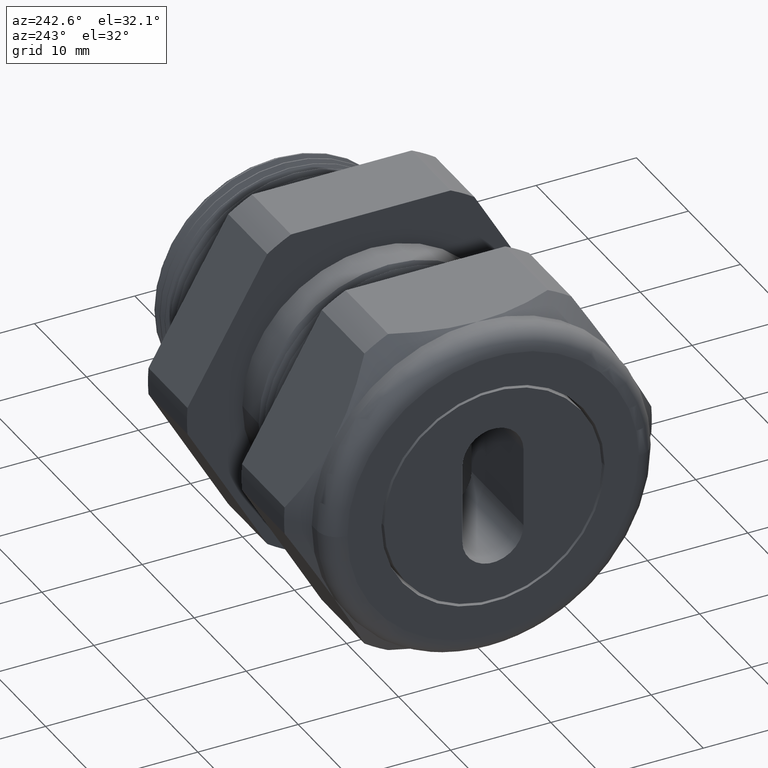
[diagram: clean part render]
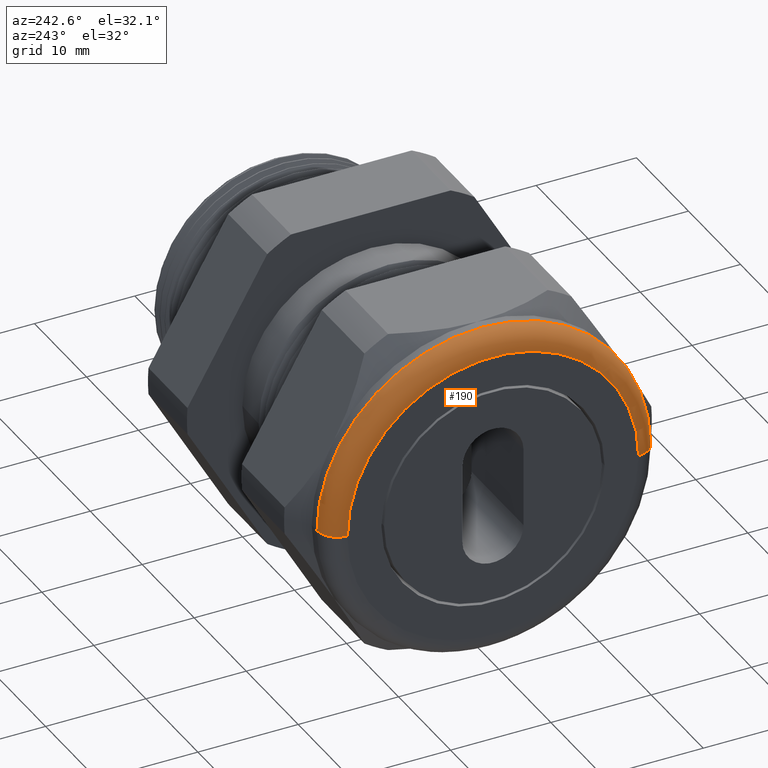
[diagram: same view with one face highlighted and labeled with its STEP entity id]
A machine part, auxiliary view. The second image highlights one B-rep face of the part: STEP entity #190.
In plain terms, the highlighted toroidal blend (fillet) surface has major radius 14.51 mm and minor (blend) radius 2 mm.
Its self-contained STEP definition (entity closure, byte-faithful):
#190 = ADVANCED_FACE ( 'NONE', ( #1833 ), #1827, .T. ) ;
#191 = EDGE_LOOP ( 'NONE', ( #210, #201, #204, #207 ) ) ;
#199 = VERTEX_POINT ( 'NONE', #1811 ) ;
#200 = VERTEX_POINT ( 'NONE', #1810 ) ;
#201 = ORIENTED_EDGE ( 'NONE', *, *, #203, .T. ) ;
#202 = VERTEX_POINT ( 'NONE', #1809 ) ;
#203 = EDGE_CURVE ( 'NONE', #199, #202, #1808, .T. ) ;
#204 = ORIENTED_EDGE ( 'NONE', *, *, #205, .F. ) ;
#205 = EDGE_CURVE ( 'NONE', #206, #202, #1864, .T. ) ;
#206 = VERTEX_POINT ( 'NONE', #1859 ) ;
#207 = ORIENTED_EDGE ( 'NONE', *, *, #208, .F. ) ;
#208 = EDGE_CURVE ( 'NONE', #200, #206, #1857, .T. ) ;
#210 = ORIENTED_EDGE ( 'NONE', *, *, #211, .F. ) ;
#211 = EDGE_CURVE ( 'NONE', #199, #200, #1852, .T. ) ;
#1805 = DIRECTION ( 'NONE',  ( -4.591237839507477700E-033, -1.224646799147353200E-016, 1.000000000000000000 ) ) ;
#1806 = CARTESIAN_POINT ( 'NONE',  ( -1.451259842519684800, 0.5712598425196849800, 6.995915376231533800E-017 ) ) ;
#1807 = AXIS2_PLACEMENT_3D ( 'NONE', #1806, #1805, #1865 ) ;
#1808 = CIRCLE ( 'NONE', #1807, 0.07874015748031496000 ) ;
#1809 = CARTESIAN_POINT ( 'NONE',  ( -1.529999999999999800, 0.5712598425196849800, 7.478059785344665900E-017 ) ) ;
#1810 = CARTESIAN_POINT ( 'NONE',  ( -1.451259842519684800, -0.6500000000000001300, 7.960204194457796700E-017 ) ) ;
#1811 = CARTESIAN_POINT ( 'NONE',  ( -1.451259842519684800, 0.6499999999999999100, 0.0000000000000000000 ) ) ;
#1823 = DIRECTION ( 'NONE',  ( -3.749030204222210100E-017, -1.000000000000000000, 0.0000000000000000000 ) ) ;
#1824 = DIRECTION ( 'NONE',  ( -1.000000000000000000, 3.749030204222210100E-017, 0.0000000000000000000 ) ) ;
#1825 = CARTESIAN_POINT ( 'NONE',  ( -1.451259842519684800, -1.158576058608061100E-016, 0.0000000000000000000 ) ) ;
#1826 = AXIS2_PLACEMENT_3D ( 'NONE', #1825, #1824, #1823 ) ;
#1827 = TOROIDAL_SURFACE ( 'NONE', #1826, 0.5712598425196850900, 0.07874015748031496000 ) ;
#1833 = FACE_OUTER_BOUND ( 'NONE', #191, .T. ) ;
#1849 = DIRECTION ( 'NONE',  ( 0.0000000000000000000, -1.000000000000000000, 0.0000000000000000000 ) ) ;
#1850 = DIRECTION ( 'NONE',  ( 1.000000000000000000, -3.749030204222210100E-017, -0.0000000000000000000 ) ) ;
#1851 = AXIS2_PLACEMENT_3D ( 'NONE', #1858, #1850, #1849 ) ;
#1852 = CIRCLE ( 'NONE', #1851, 0.6500000000000000200 ) ;
#1853 = DIRECTION ( 'NONE',  ( -1.000000000000000000, 0.0000000000000000000, 0.0000000000000000000 ) ) ;
#1854 = DIRECTION ( 'NONE',  ( -0.0000000000000000000, 0.0000000000000000000, -1.000000000000000000 ) ) ;
#1855 = CARTESIAN_POINT ( 'NONE',  ( -1.451259842519684800, -0.5712598425196852000, 0.0000000000000000000 ) ) ;
#1856 = AXIS2_PLACEMENT_3D ( 'NONE', #1855, #1854, #1853 ) ;
#1857 = CIRCLE ( 'NONE', #1856, 0.07874015748031502900 ) ;
#1858 = CARTESIAN_POINT ( 'NONE',  ( -1.451259842519684800, -1.158576058608061100E-016, 0.0000000000000000000 ) ) ;
#1859 = CARTESIAN_POINT ( 'NONE',  ( -1.529999999999999800, -0.5712598425196852000, 0.0000000000000000000 ) ) ;
#1860 = DIRECTION ( 'NONE',  ( 0.0000000000000000000, -1.000000000000000000, 0.0000000000000000000 ) ) ;
#1861 = DIRECTION ( 'NONE',  ( -1.000000000000000000, 3.749030204222210100E-017, 0.0000000000000000000 ) ) ;
#1862 = CARTESIAN_POINT ( 'NONE',  ( -1.529999999999999800, -1.129056135740169600E-016, 0.0000000000000000000 ) ) ;
#1863 = AXIS2_PLACEMENT_3D ( 'NONE', #1862, #1861, #1860 ) ;
#1864 = CIRCLE ( 'NONE', #1863, 0.5712598425196850900 ) ;
#1865 = DIRECTION ( 'NONE',  ( 0.0000000000000000000, -1.000000000000000000, -1.224646799147353500E-016 ) ) ;